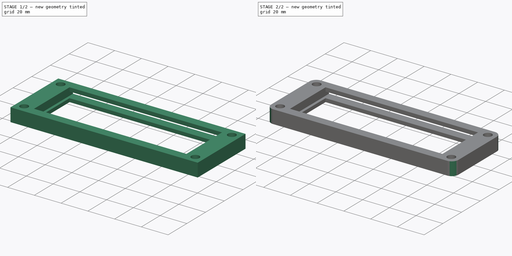
[diagram: build sequence overview — one tinted view per stage of 2, left to right]
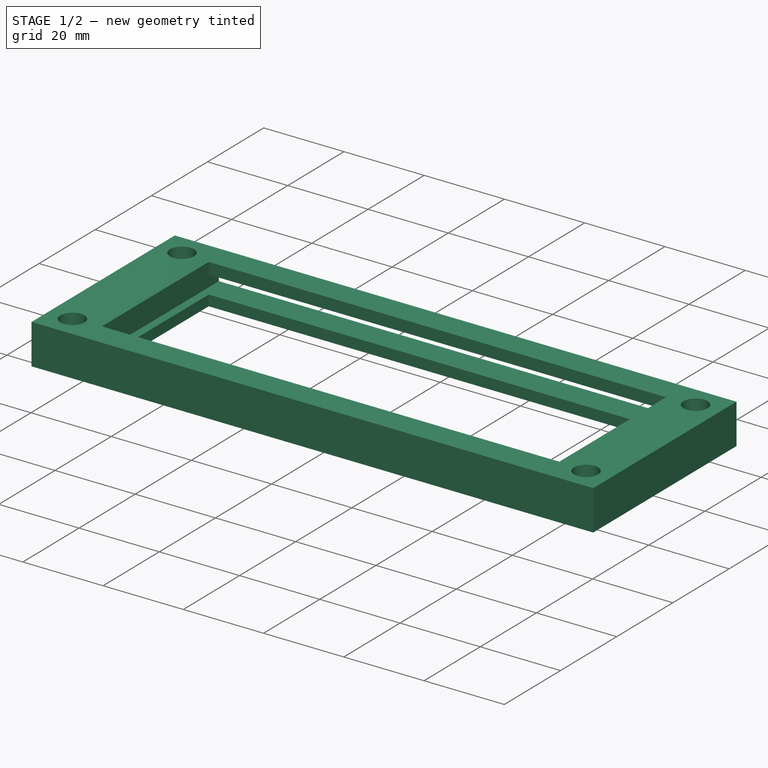
[diagram: stage 1 of 2 — iso view after this stage's code; geometry added in this stage tinted green]
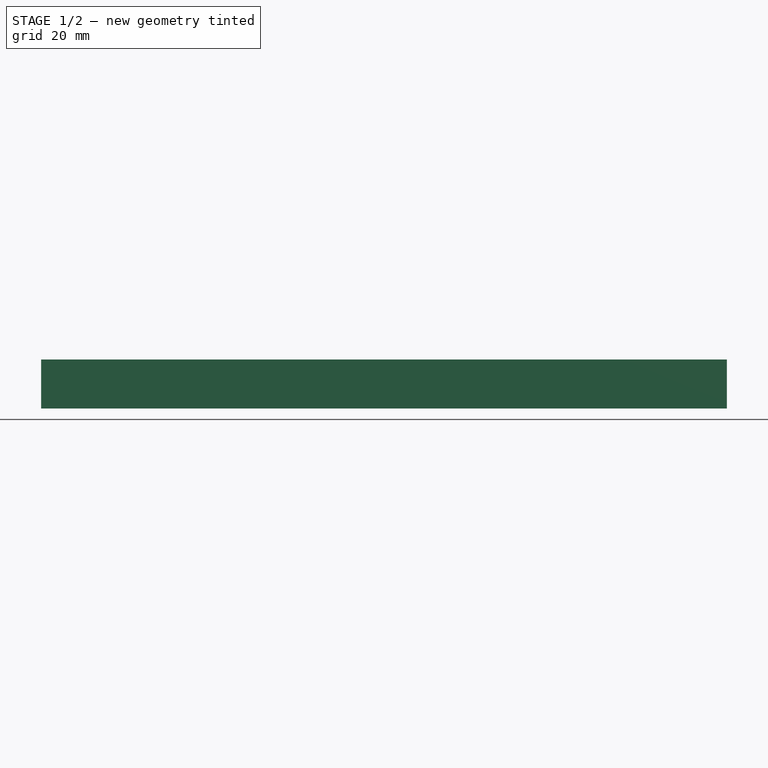
[diagram: stage 1 of 2 — front view after this stage's code; geometry added in this stage tinted green]
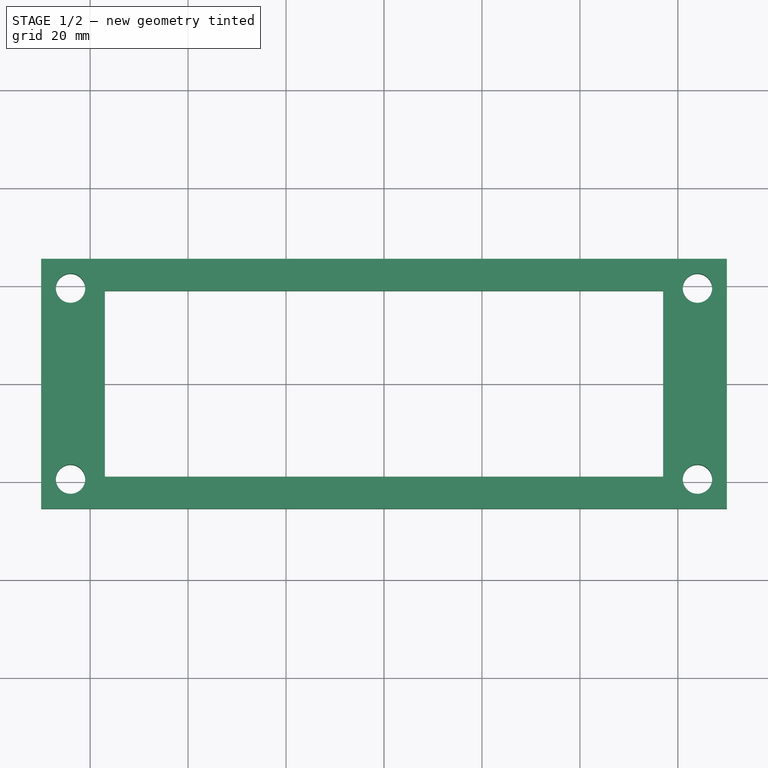
[diagram: stage 1 of 2 — top view after this stage's code; geometry added in this stage tinted green]
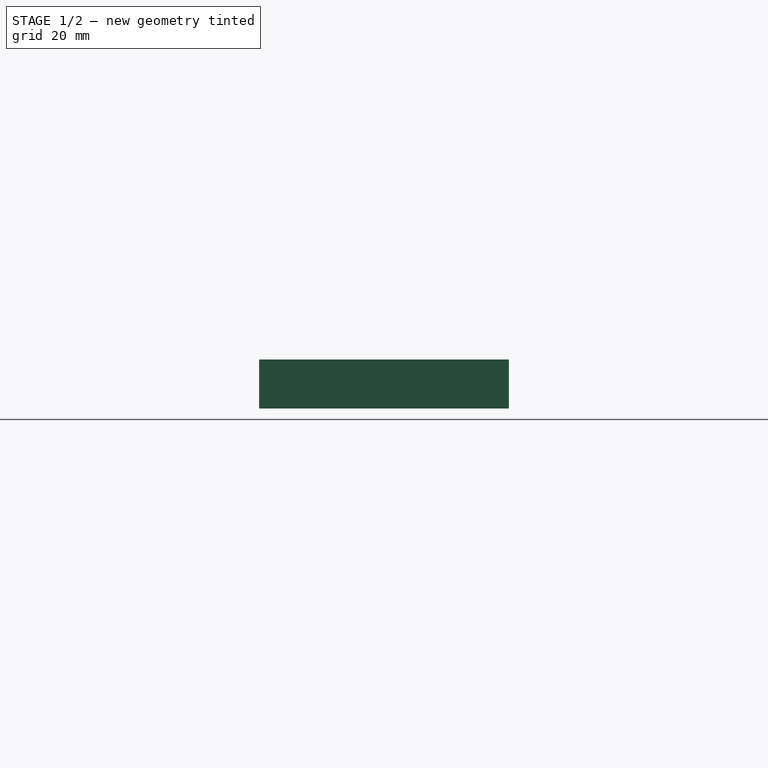
[diagram: stage 1 of 2 — right view after this stage's code; geometry added in this stage tinted green]
FCSTD DOCUMENT  (FreeCAD 0.16R6705 (Git))
Label: struttura
License: All rights reserved
LicenseURL: http://it.wikipedia.org/wiki/<copyright redacted>
objects: Sketcher::SketchObject×2, PartDesign::Pad×1, PartDesign::Pocket×1, PartDesign::Fillet×1
note: 7 computed .brp shape members not serialized (recipe doc carries the construction recipe); baked Part::Feature solids carry a one-line shape summary decoded from their .brp

FEATURE [Sketcher::SketchObject] Sketch
  sketch-geometry (13):
    g0: LineSegment StartX=-70 StartY=-25.5 StartZ=0 EndX=70 EndY=-25.5 EndZ=0
    g1: LineSegment StartX=70 StartY=-25.5 StartZ=0 EndX=70 EndY=25.5 EndZ=0
    g2: LineSegment StartX=70 StartY=25.5 StartZ=0 EndX=-70 EndY=25.5 EndZ=0
    g3: LineSegment StartX=-70 StartY=25.5 StartZ=0 EndX=-70 EndY=-25.5 EndZ=0
    g4: LineSegment StartX=-57 StartY=-19 StartZ=0 EndX=57 EndY=-19 EndZ=0
    g5: LineSegment StartX=57 StartY=-19 StartZ=0 EndX=57 EndY=19 EndZ=0
    g6: LineSegment StartX=57 StartY=19 StartZ=0 EndX=-57 EndY=19 EndZ=0
    g7: LineSegment StartX=-57 StartY=19 StartZ=0 EndX=-57 EndY=-19 EndZ=0
    g8: Circle CenterX=-64 CenterY=19.5 CenterZ=0 NormalX=0 NormalY=0 NormalZ=1 Radius=3
    g9: Circle CenterX=-64 CenterY=-19.5 CenterZ=0 NormalX=0 NormalY=0 NormalZ=1 Radius=3
    g10: Circle CenterX=109.114 CenterY=-21.2777 CenterZ=0 NormalX=0 NormalY=0 NormalZ=1 Radius=0
    g11: Circle CenterX=64 CenterY=-19.5 CenterZ=0 NormalX=0 NormalY=0 NormalZ=1 Radius=3
    g12: Circle CenterX=64 CenterY=19.5 CenterZ=0 NormalX=0 NormalY=0 NormalZ=1 Radius=3
  constraints (33):
    c: Coincident(g0,g1)
    c: Coincident(g1,g2)
    c: Coincident(g2,g3)
    c: Coincident(g3,g0)
    c: Horizontal(g0)
    c: Horizontal(g2)
    c: Vertical(g1)
    c: Vertical(g3)
    c: Coincident(g4,g5)
    c: Coincident(g5,g6)
    c: Coincident(g6,g7)
    c: Coincident(g7,g4)
    c: Horizontal(g4)
    c: Horizontal(g6)
    c: Vertical(g5)
    c: Vertical(g7)
    c: Symmetric(g4,g4,g-2)
    c: Symmetric(g0,g0,g-2)
    c: DistanceX(g4,g0) = 13
    c: DistanceY(g0,g4) = 6.5
    c: DistanceY(g6,g2) = 6.5
    c: DistanceY(g4,g6) = 38
    c: Equal(g8,g9)
    c: Equal(g9,g11)
    c: Equal(g11,g12)
    c: Radius(g8) = 3
    c: DistanceX(g0,g0) = 140
    c: Symmetric(g5,g4,g-1)
    c: Symmetric(g9,g8,g-1)
    c: Symmetric(g12,g11,g-1)
    c: Symmetric(g8,g12,g-2)
    c: DistanceX(g12,g1) = 6
    c: DistanceY(g12,g1) = 6
FEATURE [PartDesign::Pad] Pad
  Length = 10
  Length2 = 100
  Sketch = -> Sketch
  Type = 0
FEATURE [Sketcher::SketchObject] Sketch001
  ExternalGeometry = -> [Pad]
  Placement = pos=(0,25.5,0) rot=(0,0.707107,0.707107;3.14159rad)
  Support = -> Pad [Face3]
  sketch-geometry (4):
    g0: LineSegment StartX=-59 StartY=7.14921 StartZ=0 EndX=59 EndY=7.14921 EndZ=0
    g1: LineSegment StartX=59 StartY=7.14921 StartZ=0 EndX=59 EndY=2.64921 EndZ=0
    g2: LineSegment StartX=59 StartY=2.64921 StartZ=0 EndX=-59 EndY=2.64921 EndZ=0
    g3: LineSegment StartX=-59 StartY=2.64921 StartZ=0 EndX=-59 EndY=7.14921 EndZ=0
  constraints (11):
    c: Coincident(g0,g1)
    c: Coincident(g1,g2)
    c: Coincident(g2,g3)
    c: Coincident(g3,g0)
    c: Horizontal(g0)
    c: Horizontal(g2)
    c: Vertical(g1)
    c: Vertical(g3)
    c: Symmetric(g0,g0,g-2)
    c: DistanceX(g0,g-3) = 11
    c: DistanceY(g1,g0) = 4.5
FEATURE [PartDesign::Pocket] Pocket
  Length = 45
  Sketch = -> Sketch001
  Type = 0
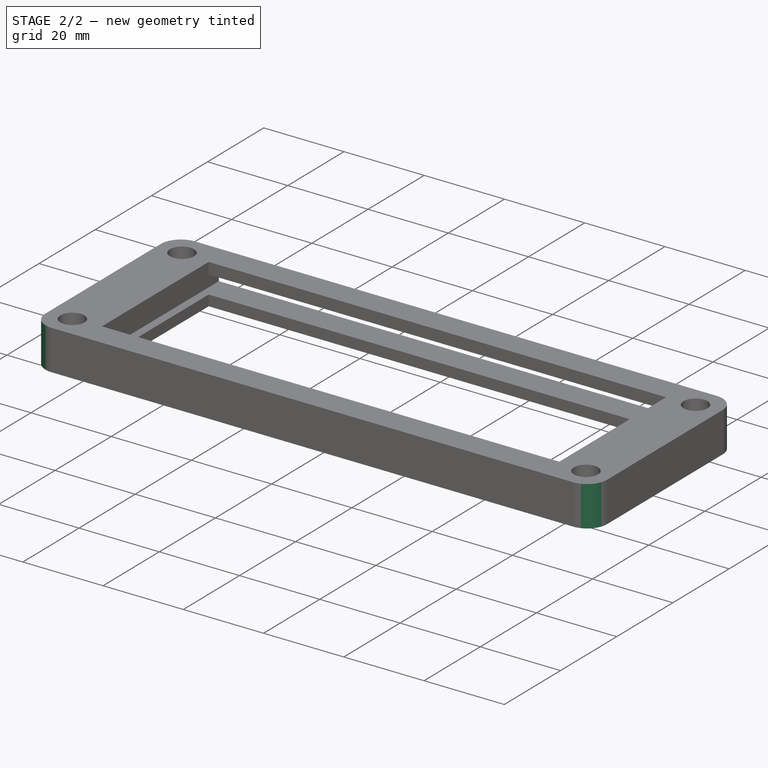
[diagram: stage 2 of 2 — iso view after this stage's code; geometry added in this stage tinted green]
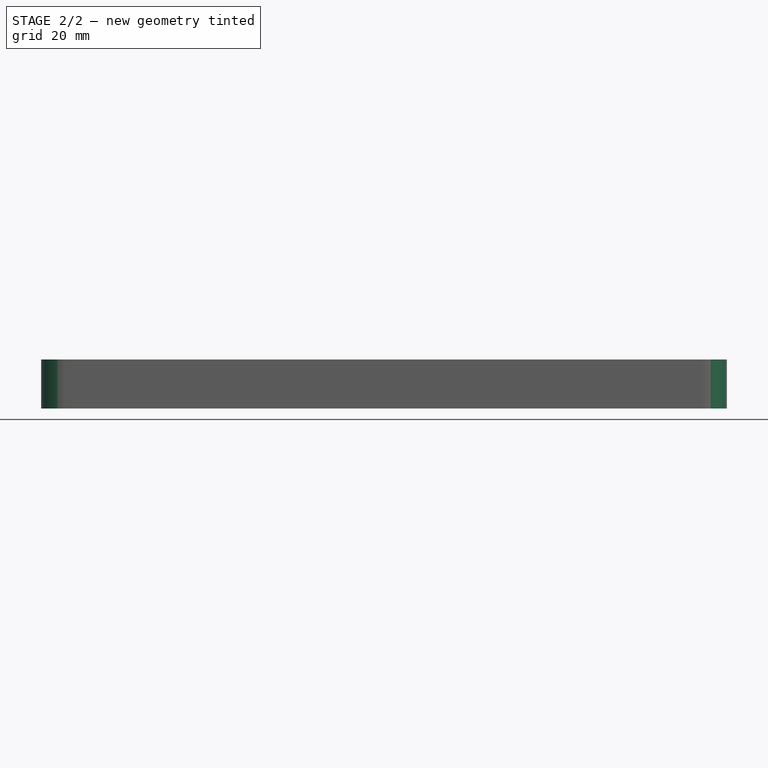
[diagram: stage 2 of 2 — front view after this stage's code; geometry added in this stage tinted green]
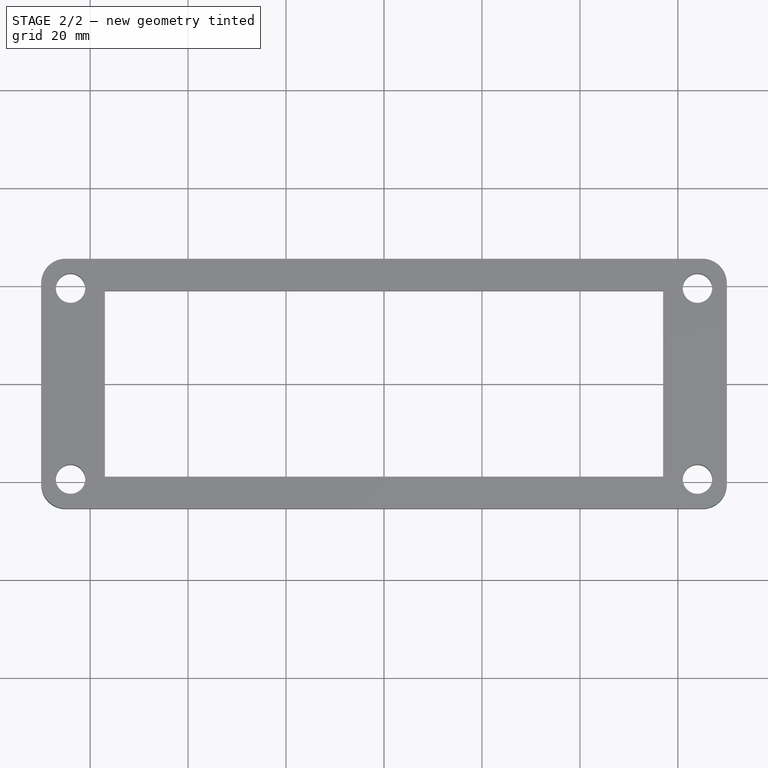
[diagram: stage 2 of 2 — top view after this stage's code; geometry added in this stage tinted green]
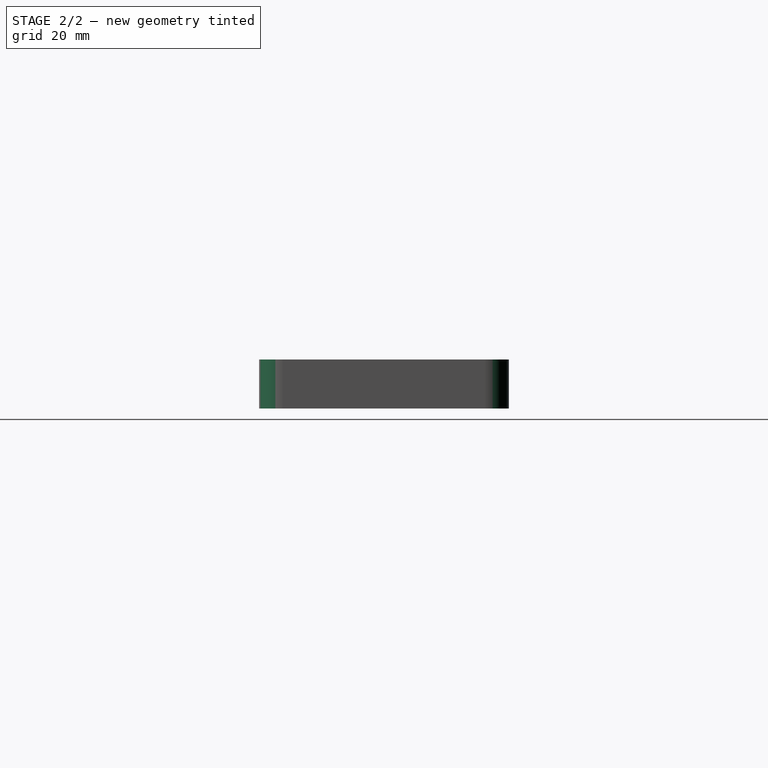
[diagram: stage 2 of 2 — right view after this stage's code; geometry added in this stage tinted green]
FEATURE [PartDesign::Fillet] Fillet
  Base = -> Pocket [Edge5,Edge1,Edge2,Edge8]
  Radius = 5
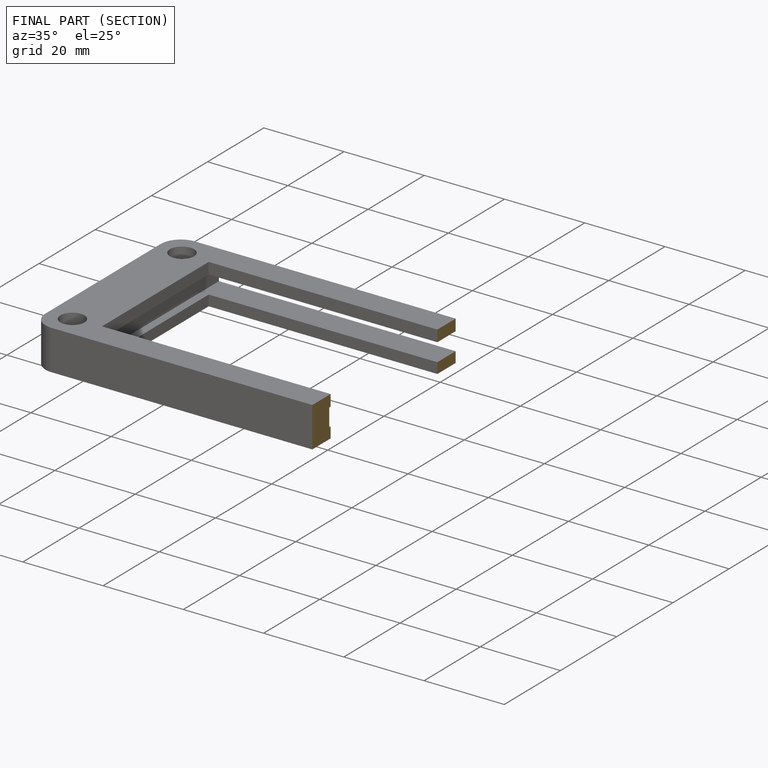
[diagram: finished part — half-section view (interior)]
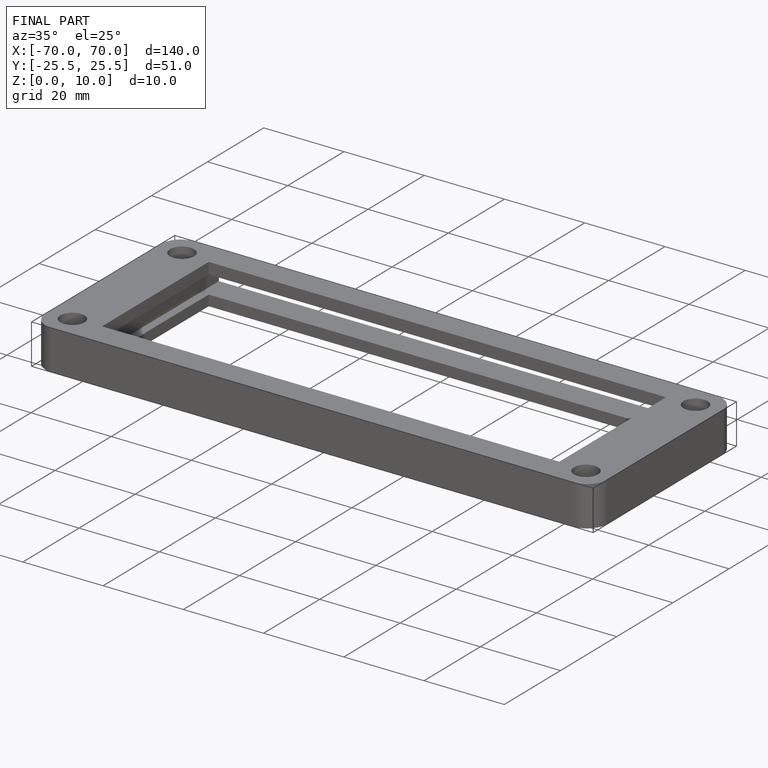
[diagram: finished part — iso view with bounding-box wireframe]
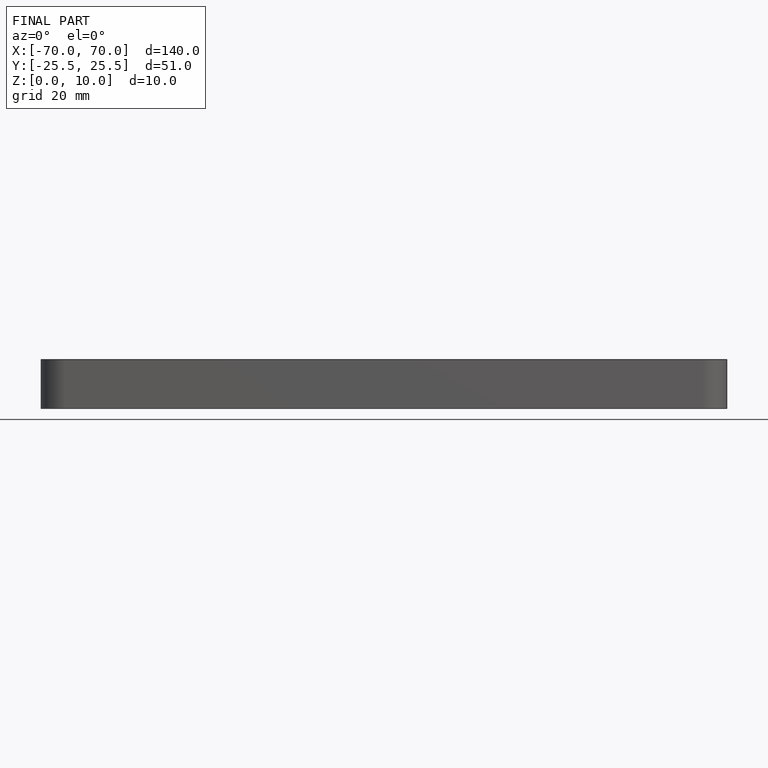
[diagram: finished part — front view with bounding-box wireframe]
